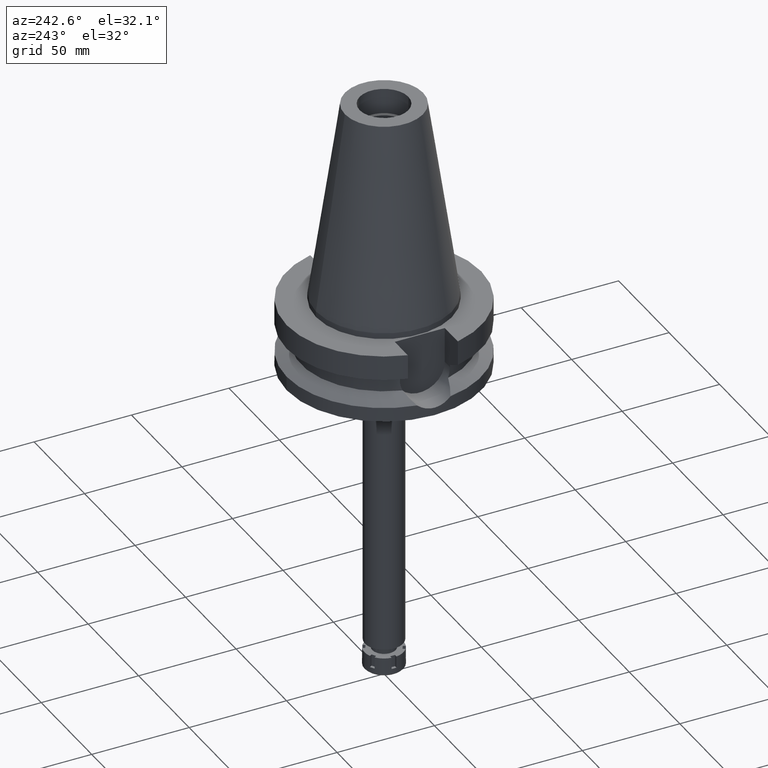
[diagram: clean part render]
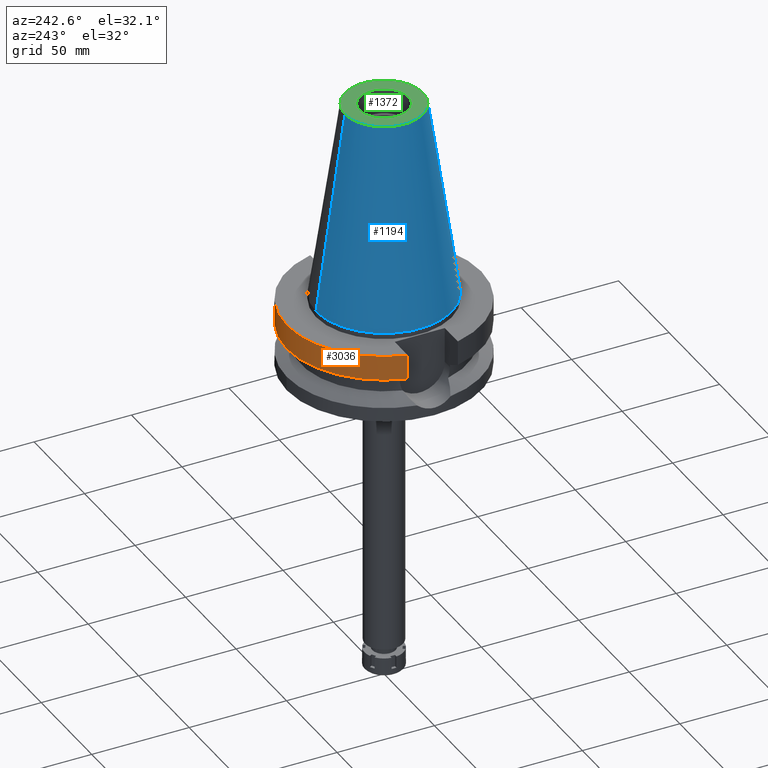
[diagram: same view with three faces highlighted in distinct colors, each labeled with its STEP entity id]
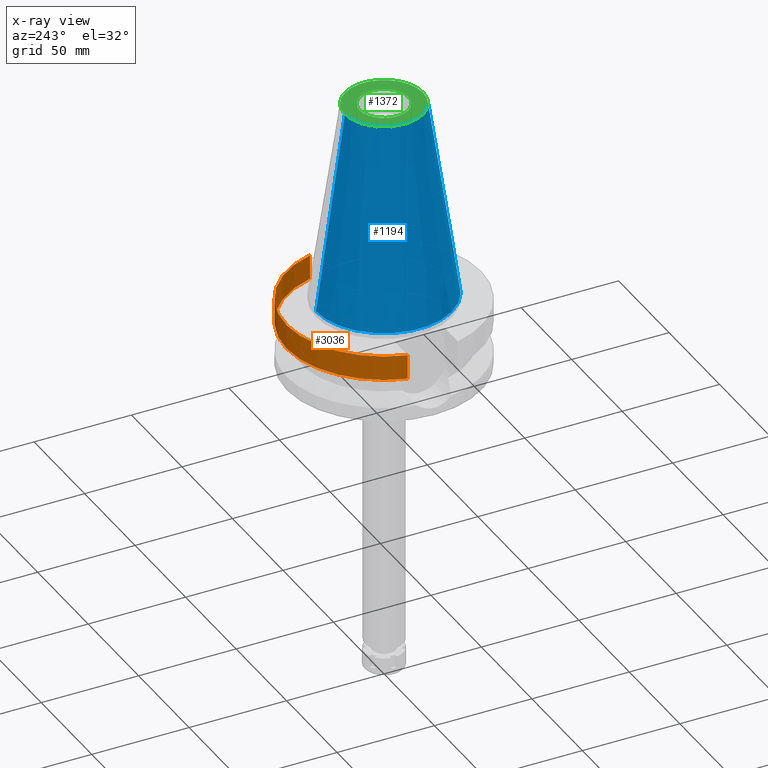
[diagram: x-ray of the same camera — body ghosted, the three highlighted faces saturated]
A machine part, auxiliary view with three faces highlighted in distinct colors.
The next image is the same camera in x-ray (body ghosted, the three faces saturated) — at least one of them is partly hidden behind the body in this view.
Their STEP definitions:

[orange] entity #3036 — the highlighted cylindrical surface (partial cylindrical patch) has radius 50 mm, axis along (0, 0, -1).
#226 = DIRECTION ( 'NONE',  ( 0.0000000000000000000, 0.0000000000000000000, -1.000000000000000000 ) ) ;
#389 = DIRECTION ( 'NONE',  ( 0.0000000000000000000, 0.0000000000000000000, 1.000000000000000000 ) ) ;
#471 = ORIENTED_EDGE ( 'NONE', *, *, #3620, .F. ) ;
#566 = DIRECTION ( 'NONE',  ( 0.0000000000000000000, 1.000000000000000000, 0.0000000000000000000 ) ) ;
#809 = LINE ( 'NONE', #2024, #3494 ) ;
#819 = DIRECTION ( 'NONE',  ( 0.0000000000000000000, -1.000000000000000000, 0.0000000000000000000 ) ) ;
#875 = CIRCLE ( 'NONE', #1355, 50.00000000000000000 ) ;
#953 = VERTEX_POINT ( 'NONE', #2366 ) ;
#1136 = VERTEX_POINT ( 'NONE', #2403 ) ;
#1265 = DIRECTION ( 'NONE',  ( 0.0000000000000000000, 1.000000000000000000, 0.0000000000000000000 ) ) ;
#1355 = AXIS2_PLACEMENT_3D ( 'NONE', #1810, #389, #1265 ) ;
#1412 = EDGE_CURVE ( 'NONE', #2921, #1136, #3382, .T. ) ;
#1545 = VERTEX_POINT ( 'NONE', #1596 ) ;
#1596 = CARTESIAN_POINT ( 'NONE',  ( -48.32056912780999625, 12.85000385852000093, -15.66265767138999898 ) ) ;
#1612 = CARTESIAN_POINT ( 'NONE',  ( -48.32057015392000210, 12.84999999999999964, -3.000000000000000000 ) ) ;
#1745 = CARTESIAN_POINT ( 'NONE',  ( 0.0000000000000000000, 2.653074825673000053E-14, -3.000000000000000000 ) ) ;
#1747 = DIRECTION ( 'NONE',  ( 8.100749521826603165E-08, -3.046167948962851084E-07, 0.9999999999999503730 ) ) ;
#1810 = CARTESIAN_POINT ( 'NONE',  ( 0.0000000000000000000, 1.006319759053999930E-14, -15.66269223573000069 ) ) ;
#1830 = DIRECTION ( 'NONE',  ( 8.103406434828602822E-08, 3.047167049311851409E-07, -0.9999999999999503730 ) ) ;
#1943 = CYLINDRICAL_SURFACE ( 'NONE', #2837, 50.00000000000000000 ) ;
#2024 = CARTESIAN_POINT ( 'NONE',  ( 48.32056912815000516, 12.85000385725999905, -15.66265768273000170 ) ) ;
#2180 = FACE_OUTER_BOUND ( 'NONE', #3348, .T. ) ;
#2299 = ORIENTED_EDGE ( 'NONE', *, *, #2846, .F. ) ;
#2306 = ORIENTED_EDGE ( 'NONE', *, *, #2816, .T. ) ;
#2354 = CARTESIAN_POINT ( 'NONE',  ( -48.32057015392000210, 12.84999999999999964, -3.000000000000000000 ) ) ;
#2366 = CARTESIAN_POINT ( 'NONE',  ( 48.32056912815000516, 12.85000385725999905, -15.66265768273000170 ) ) ;
#2403 = CARTESIAN_POINT ( 'NONE',  ( 48.32057015392000210, 12.84999999999999964, -3.000000000000000000 ) ) ;
#2588 = DIRECTION ( 'NONE',  ( 0.0000000000000000000, 0.0000000000000000000, -1.000000000000000000 ) ) ;
#2816 = EDGE_CURVE ( 'NONE', #953, #1545, #875, .T. ) ;
#2837 = AXIS2_PLACEMENT_3D ( 'NONE', #2997, #226, #819 ) ;
#2846 = EDGE_CURVE ( 'NONE', #2921, #1545, #2961, .T. ) ;
#2921 = VERTEX_POINT ( 'NONE', #1612 ) ;
#2961 = LINE ( 'NONE', #2354, #3486 ) ;
#2997 = CARTESIAN_POINT ( 'NONE',  ( 0.0000000000000000000, 2.653074825673000053E-14, 116.6400000000000006 ) ) ;
#3036 = ADVANCED_FACE ( 'NONE', ( #2180 ), #1943, .T. ) ;
#3348 = EDGE_LOOP ( 'NONE', ( #2299, #3425, #471, #2306 ) ) ;
#3382 = CIRCLE ( 'NONE', #3440, 50.00000000000000000 ) ;
#3425 = ORIENTED_EDGE ( 'NONE', *, *, #1412, .T. ) ;
#3440 = AXIS2_PLACEMENT_3D ( 'NONE', #1745, #2588, #566 ) ;
#3486 = VECTOR ( 'NONE', #1830, 1000.000000000000114 ) ;
#3494 = VECTOR ( 'NONE', #1747, 1000.000000000000114 ) ;
#3620 = EDGE_CURVE ( 'NONE', #953, #1136, #809, .T. ) ;

[blue] entity #1194 — the highlighted conical surface has half-angle 8.297 deg.
#380 = VERTEX_POINT ( 'NONE', #3515 ) ;
#582 = EDGE_CURVE ( 'NONE', #380, #3024, #1229, .T. ) ;
#645 = ORIENTED_EDGE ( 'NONE', *, *, #582, .T. ) ;
#656 = EDGE_LOOP ( 'NONE', ( #3123, #2456, #645, #1024 ) ) ;
#807 = CARTESIAN_POINT ( 'NONE',  ( 0.0000000000000000000, -20.07942971896000017, 101.7999999999999972 ) ) ;
#922 = EDGE_CURVE ( 'NONE', #2891, #1079, #3492, .T. ) ;
#1024 = ORIENTED_EDGE ( 'NONE', *, *, #3472, .T. ) ;
#1079 = VERTEX_POINT ( 'NONE', #2661 ) ;
#1194 = ADVANCED_FACE ( 'NONE', ( #3681 ), #1838, .T. ) ;
#1200 = CARTESIAN_POINT ( 'NONE',  ( 0.0000000000000000000, 1.847992019912999597E-14, 3.979039320256999774E-13 ) ) ;
#1229 = CIRCLE ( 'NONE', #3310, 20.07942971896000017 ) ;
#1262 = CARTESIAN_POINT ( 'NONE',  ( 0.0000000000000000000, 1.847992019912999597E-14, 101.7999999999999972 ) ) ;
#1317 = EDGE_CURVE ( 'NONE', #380, #2891, #3301, .T. ) ;
#1390 = CARTESIAN_POINT ( 'NONE',  ( 0.0000000000000000000, 1.847992019912999597E-14, 50.89999999999999858 ) ) ;
#1599 = VECTOR ( 'NONE', #3303, 1000.000000000000114 ) ;
#1620 = CARTESIAN_POINT ( 'NONE',  ( 0.0000000000000000000, 20.07942971896000017, 101.7999999999999972 ) ) ;
#1838 = CONICAL_SURFACE ( 'NONE', #3256, 27.50221485948000222, 0.1448099680379422438 ) ;
#2063 = DIRECTION ( 'NONE',  ( 0.0000000000000000000, -1.000000000000000000, 0.0000000000000000000 ) ) ;
#2174 = LINE ( 'NONE', #1620, #1599 ) ;
#2405 = DIRECTION ( 'NONE',  ( 0.0000000000000000000, 0.0000000000000000000, -1.000000000000000000 ) ) ;
#2456 = ORIENTED_EDGE ( 'NONE', *, *, #1317, .F. ) ;
#2499 = AXIS2_PLACEMENT_3D ( 'NONE', #1200, #3474, #2063 ) ;
#2661 = CARTESIAN_POINT ( 'NONE',  ( 0.0000000000000000000, 34.92499999999999716, 5.329070518200999791E-13 ) ) ;
#2724 = CARTESIAN_POINT ( 'NONE',  ( 0.0000000000000000000, 20.07942971896000017, 101.7999999999999972 ) ) ;
#2891 = VERTEX_POINT ( 'NONE', #3537 ) ;
#3024 = VERTEX_POINT ( 'NONE', #2724 ) ;
#3123 = ORIENTED_EDGE ( 'NONE', *, *, #922, .F. ) ;
#3189 = VECTOR ( 'NONE', #3663, 1000.000000000000114 ) ;
#3256 = AXIS2_PLACEMENT_3D ( 'NONE', #1390, #3628, #3327 ) ;
#3301 = LINE ( 'NONE', #807, #3189 ) ;
#3303 = DIRECTION ( 'NONE',  ( 0.0000000000000000000, 0.1443043893538948075, -0.9895333461855641000 ) ) ;
#3310 = AXIS2_PLACEMENT_3D ( 'NONE', #1262, #2405, #3533 ) ;
#3327 = DIRECTION ( 'NONE',  ( 0.0000000000000000000, -1.000000000000000000, 0.0000000000000000000 ) ) ;
#3472 = EDGE_CURVE ( 'NONE', #3024, #1079, #2174, .T. ) ;
#3474 = DIRECTION ( 'NONE',  ( 0.0000000000000000000, 0.0000000000000000000, -1.000000000000000000 ) ) ;
#3492 = CIRCLE ( 'NONE', #2499, 34.92499999999999716 ) ;
#3515 = CARTESIAN_POINT ( 'NONE',  ( 0.0000000000000000000, -20.07942971896000017, 101.7999999999999972 ) ) ;
#3533 = DIRECTION ( 'NONE',  ( 0.0000000000000000000, -1.000000000000000000, 0.0000000000000000000 ) ) ;
#3537 = CARTESIAN_POINT ( 'NONE',  ( 0.0000000000000000000, -34.92499999999999716, 5.329070518200999791E-13 ) ) ;
#3628 = DIRECTION ( 'NONE',  ( 0.0000000000000000000, 0.0000000000000000000, -1.000000000000000000 ) ) ;
#3663 = DIRECTION ( 'NONE',  ( 0.0000000000000000000, -0.1443043893538948075, -0.9895333461855641000 ) ) ;
#3681 = FACE_OUTER_BOUND ( 'NONE', #656, .T. ) ;

[green] entity #1372 — the highlighted planar face has unit normal (0, 0, -1).
#137 = EDGE_LOOP ( 'NONE', ( #1781, #895 ) ) ;
#188 = DIRECTION ( 'NONE',  ( 0.0000000000000000000, 1.000000000000000000, 0.0000000000000000000 ) ) ;
#380 = VERTEX_POINT ( 'NONE', #3515 ) ;
#408 = CIRCLE ( 'NONE', #3498, 20.07942971896000017 ) ;
#482 = EDGE_LOOP ( 'NONE', ( #1902, #606 ) ) ;
#505 = VERTEX_POINT ( 'NONE', #3553 ) ;
#582 = EDGE_CURVE ( 'NONE', #380, #3024, #1229, .T. ) ;
#606 = ORIENTED_EDGE ( 'NONE', *, *, #2067, .F. ) ;
#664 = CARTESIAN_POINT ( 'NONE',  ( 0.0000000000000000000, 2.653074825673000053E-14, 101.7999999999999972 ) ) ;
#739 = CARTESIAN_POINT ( 'NONE',  ( 0.0000000000000000000, 1.847992019912999597E-14, 101.7999999999999972 ) ) ;
#895 = ORIENTED_EDGE ( 'NONE', *, *, #582, .F. ) ;
#948 = AXIS2_PLACEMENT_3D ( 'NONE', #1097, #1392, #1142 ) ;
#1097 = CARTESIAN_POINT ( 'NONE',  ( 0.0000000000000000000, 2.653074825673000053E-14, 101.7999999999999972 ) ) ;
#1142 = DIRECTION ( 'NONE',  ( 0.0000000000000000000, 1.000000000000000000, 0.0000000000000000000 ) ) ;
#1229 = CIRCLE ( 'NONE', #3310, 20.07942971896000017 ) ;
#1262 = CARTESIAN_POINT ( 'NONE',  ( 0.0000000000000000000, 1.847992019912999597E-14, 101.7999999999999972 ) ) ;
#1330 = CARTESIAN_POINT ( 'NONE',  ( 0.0000000000000000000, 12.50000000000000000, 101.7999999999999972 ) ) ;
#1335 = DIRECTION ( 'NONE',  ( 0.0000000000000000000, -1.000000000000000000, 0.0000000000000000000 ) ) ;
#1372 = ADVANCED_FACE ( 'NONE', ( #1678, #1905 ), #1375, .F. ) ;
#1375 = PLANE ( 'NONE',  #1782 ) ;
#1392 = DIRECTION ( 'NONE',  ( 0.0000000000000000000, 0.0000000000000000000, 1.000000000000000000 ) ) ;
#1484 = AXIS2_PLACEMENT_3D ( 'NONE', #664, #3011, #2928 ) ;
#1678 = FACE_OUTER_BOUND ( 'NONE', #137, .T. ) ;
#1744 = EDGE_CURVE ( 'NONE', #3024, #380, #408, .T. ) ;
#1781 = ORIENTED_EDGE ( 'NONE', *, *, #1744, .F. ) ;
#1782 = AXIS2_PLACEMENT_3D ( 'NONE', #3385, #2481, #1335 ) ;
#1902 = ORIENTED_EDGE ( 'NONE', *, *, #2211, .F. ) ;
#1905 = FACE_BOUND ( 'NONE', #482, .T. ) ;
#1942 = VERTEX_POINT ( 'NONE', #1330 ) ;
#2067 = EDGE_CURVE ( 'NONE', #505, #1942, #2261, .T. ) ;
#2211 = EDGE_CURVE ( 'NONE', #1942, #505, #3684, .T. ) ;
#2261 = CIRCLE ( 'NONE', #1484, 12.50000000000000000 ) ;
#2405 = DIRECTION ( 'NONE',  ( 0.0000000000000000000, 0.0000000000000000000, -1.000000000000000000 ) ) ;
#2481 = DIRECTION ( 'NONE',  ( 0.0000000000000000000, 0.0000000000000000000, -1.000000000000000000 ) ) ;
#2722 = DIRECTION ( 'NONE',  ( 0.0000000000000000000, 0.0000000000000000000, -1.000000000000000000 ) ) ;
#2724 = CARTESIAN_POINT ( 'NONE',  ( 0.0000000000000000000, 20.07942971896000017, 101.7999999999999972 ) ) ;
#2928 = DIRECTION ( 'NONE',  ( 0.0000000000000000000, -1.000000000000000000, 0.0000000000000000000 ) ) ;
#3011 = DIRECTION ( 'NONE',  ( 0.0000000000000000000, 0.0000000000000000000, 1.000000000000000000 ) ) ;
#3024 = VERTEX_POINT ( 'NONE', #2724 ) ;
#3310 = AXIS2_PLACEMENT_3D ( 'NONE', #1262, #2405, #3533 ) ;
#3385 = CARTESIAN_POINT ( 'NONE',  ( 0.0000000000000000000, 2.471337240678999545E-14, 101.7999999999999972 ) ) ;
#3498 = AXIS2_PLACEMENT_3D ( 'NONE', #739, #2722, #188 ) ;
#3515 = CARTESIAN_POINT ( 'NONE',  ( 0.0000000000000000000, -20.07942971896000017, 101.7999999999999972 ) ) ;
#3533 = DIRECTION ( 'NONE',  ( 0.0000000000000000000, -1.000000000000000000, 0.0000000000000000000 ) ) ;
#3553 = CARTESIAN_POINT ( 'NONE',  ( 0.0000000000000000000, -12.50000000000000000, 101.7999999999999972 ) ) ;
#3684 = CIRCLE ( 'NONE', #948, 12.50000000000000000 ) ;